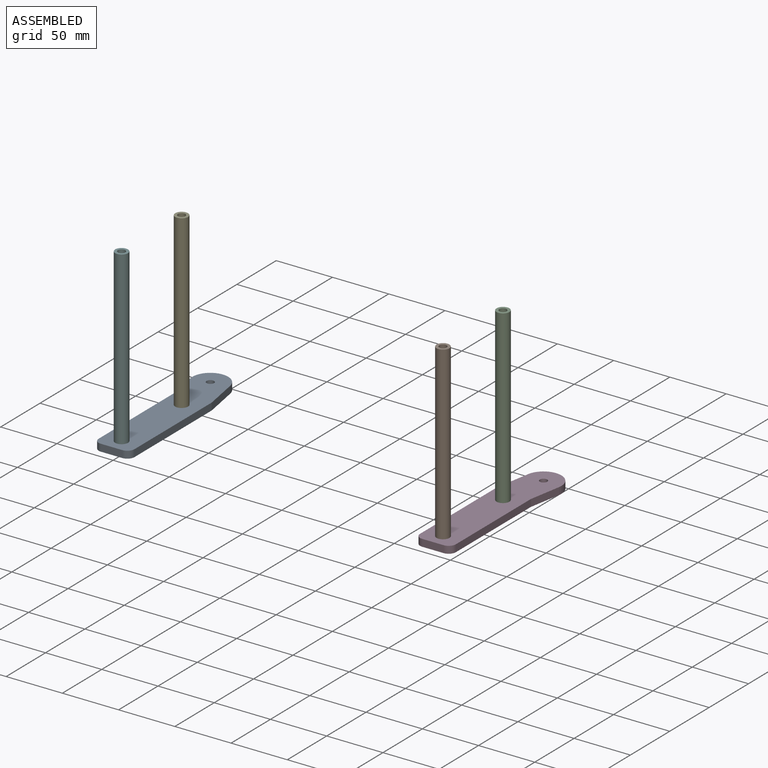
[diagram: assembled view]
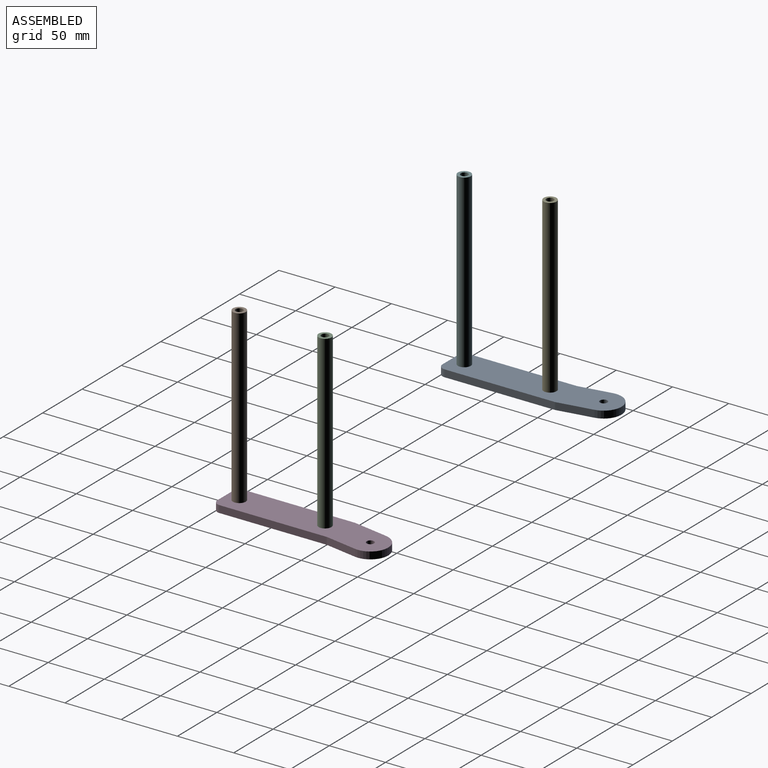
[diagram: assembled view, second angle]
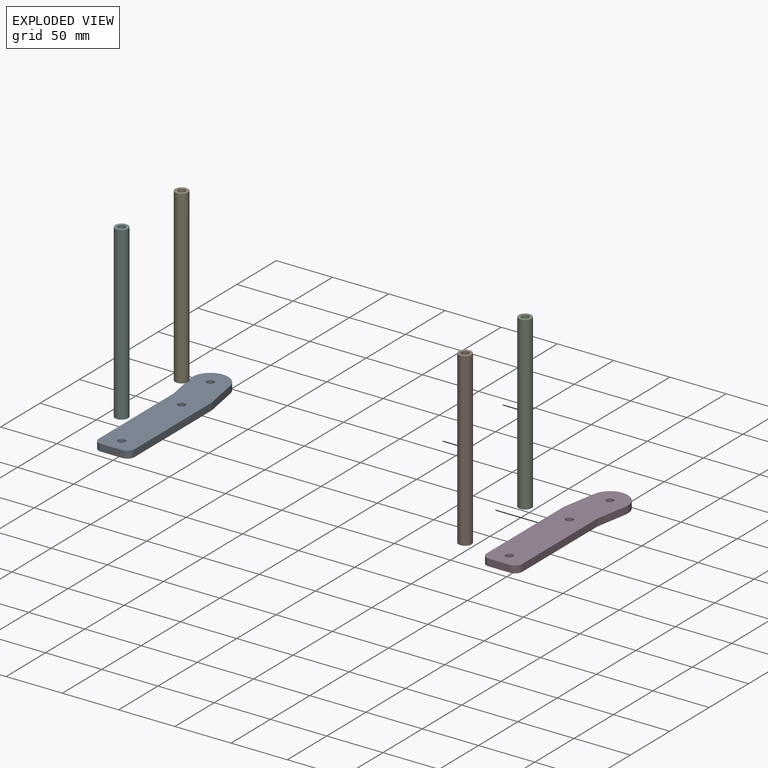
[diagram: exploded view]
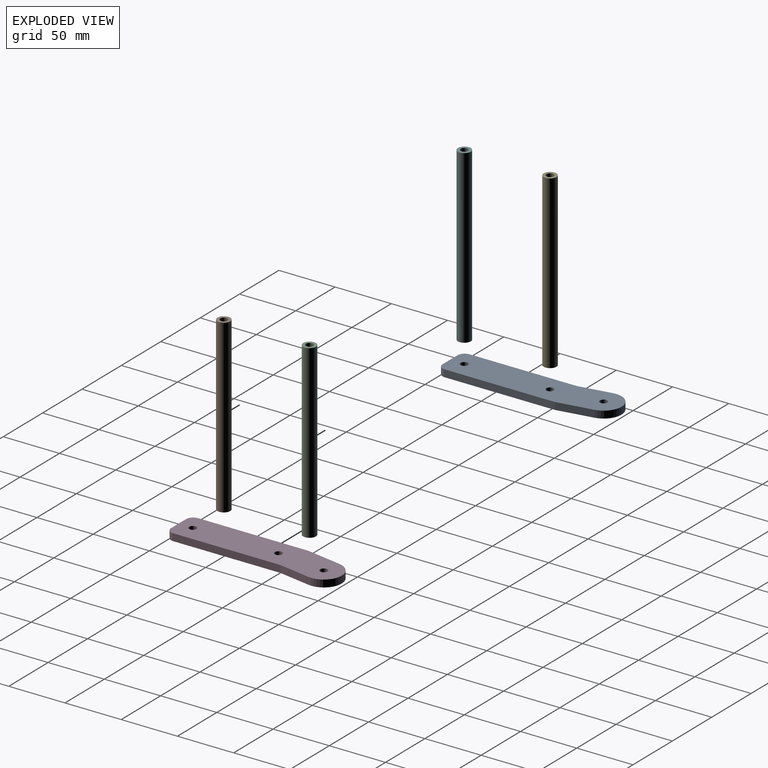
[diagram: exploded view, second angle]
ASSEMBLY  parts=6 mates=4
PART A: 15 faces, bbox 37x148.8x6.4 mm
  f0: cylinder r=15.88mm len=31.51mm, axis (0,0,-1), area 316.7mm2, adj f1,f12,f13,f14
  f1: plane 28.01x6.35mm, normal (-0.98,-0.17,0), area 180.6mm2, adj f0,f2,f13,f14
  f2: cylinder r=6.35mm len=6.35mm, axis (0,0,-1), area 7mm2, adj f1,f3,f13,f14
  f3: plane 94.69x6.35mm, normal (-1,0,0), area 601.3mm2, adj f2,f4,f13,f14
  f4: cylinder r=6.35mm len=6.35mm, axis (0,0,-1), area 63.3mm2, adj f3,f5,f13,f14
  f5: plane 19.05x6.35mm, normal (0,-1,0), area 121mm2, adj f4,f6,f13,f14
  f6: cylinder r=6.35mm len=6.35mm, axis (0,0,-1), area 63.3mm2, adj f5,f7,f13,f14
  f7: plane 97.47x6.35mm, normal (1,0,0), area 618.9mm2, adj f6,f8,f13,f14
  f8: cylinder r=6.35mm len=6.35mm, axis (0,0,-1), area 7mm2, adj f7,f12,f13,f14
  f9: cylinder r=3.3mm len=6.6mm, axis (0,0,-1), area 131.7mm2, adj f13,f14
  f10: cylinder r=3.3mm len=6.6mm, axis (0,0,-1), area 131.7mm2, adj f13,f14
  f11: cylinder r=3.3mm len=6.6mm, axis (0,0,-1), area 131.7mm2, adj f13,f14
  f12: plane 30.74x6.35mm, normal (0.98,0.17,0), area 198.2mm2, adj f0,f8,f13,f14
  f13: plane 148.78x37.03mm, normal (0,0,1), area 4510.3mm2, adj f0,f1,f2,f3,f4,f5,f6,f7
  f14: plane 148.78x37.03mm, normal (0,0,-1), area 4510.3mm2, adj f0,f1,f2,f3,f4,f5,f6,f7
PART B: 4 faces, bbox 11.4x11.4x152.4 mm
  f0: cylinder r=5.71mm len=152.4mm, axis (0,0,-1), area 5472.4mm2, adj f2,f3
  f1: cylinder r=3.3mm len=152.4mm, axis (0,0,-1), area 3161.9mm2, adj f2,f3
  f2: plane 11.43x11.43mm, normal (0,0,1), area 68.4mm2, adj f0,f1
  f3: plane 11.43x11.43mm, normal (0,0,-1), area 68.4mm2, adj f0,f1
PART C: 4 faces, bbox 11.4x11.4x152.4 mm
  f0: cylinder r=5.71mm len=152.4mm, axis (0,0,-1), area 5472.4mm2, adj f2,f3
  f1: cylinder r=3.3mm len=152.4mm, axis (0,0,-1), area 3161.9mm2, adj f2,f3
  f2: plane 11.43x11.43mm, normal (0,0,1), area 68.4mm2, adj f0,f1
  f3: plane 11.43x11.43mm, normal (0,0,-1), area 68.4mm2, adj f0,f1
PART D: 15 faces, bbox 37x148.8x6.4 mm
  f0: cylinder r=15.88mm len=31.51mm, axis (0,0,-1), area 316.7mm2, adj f1,f12,f13,f14
  f1: plane 30.74x6.35mm, normal (-0.98,0.17,0), area 198.2mm2, adj f0,f2,f13,f14
  f2: cylinder r=6.35mm len=6.35mm, axis (0,0,-1), area 7mm2, adj f1,f3,f13,f14
  f3: plane 97.47x6.35mm, normal (-1,0,0), area 618.9mm2, adj f2,f4,f13,f14
  f4: cylinder r=6.35mm len=6.35mm, axis (0,0,-1), area 63.3mm2, adj f3,f5,f13,f14
  f5: plane 19.05x6.35mm, normal (0,-1,0), area 121mm2, adj f4,f6,f13,f14
  f6: cylinder r=6.35mm len=6.35mm, axis (0,0,-1), area 63.3mm2, adj f5,f7,f13,f14
  f7: plane 94.69x6.35mm, normal (1,0,0), area 601.3mm2, adj f6,f8,f13,f14
  f8: cylinder r=6.35mm len=6.35mm, axis (0,0,-1), area 7mm2, adj f7,f12,f13,f14
  f9: cylinder r=3.3mm len=6.6mm, axis (0,0,-1), area 131.7mm2, adj f13,f14
  f10: cylinder r=3.3mm len=6.6mm, axis (0,0,-1), area 131.7mm2, adj f13,f14
  f11: cylinder r=3.3mm len=6.6mm, axis (0,0,-1), area 131.7mm2, adj f13,f14
  f12: plane 28.01x6.35mm, normal (0.98,-0.17,0), area 180.6mm2, adj f0,f8,f13,f14
  f13: plane 148.78x37.03mm, normal (0,0,1), area 4510.3mm2, adj f0,f1,f2,f3,f4,f5,f6,f7
  f14: plane 148.78x37.03mm, normal (0,0,-1), area 4510.3mm2, adj f0,f1,f2,f3,f4,f5,f6,f7
PART E: 4 faces, bbox 11.4x11.4x152.4 mm
  f0: cylinder r=3.3mm len=152.4mm, axis (0,0,-1), area 3161.9mm2, adj f2,f3
  f1: cylinder r=5.71mm len=152.4mm, axis (0,0,-1), area 5472.4mm2, adj f2,f3
  f2: plane 11.43x11.43mm, normal (0,0,1), area 68.4mm2, adj f0,f1
  f3: plane 11.43x11.43mm, normal (0,0,-1), area 68.4mm2, adj f0,f1
PART F: 4 faces, bbox 11.4x11.4x152.4 mm
  f0: cylinder r=3.3mm len=152.4mm, axis (0,0,-1), area 3161.9mm2, adj f2,f3
  f1: cylinder r=5.71mm len=152.4mm, axis (0,0,-1), area 5472.4mm2, adj f2,f3
  f2: plane 11.43x11.43mm, normal (0,0,1), area 68.4mm2, adj f0,f1
  f3: plane 11.43x11.43mm, normal (0,0,-1), area 68.4mm2, adj f0,f1
PLACE A t=(2.01,15.31,-81.98)mm
PLACE B t=(2.01,15.31,-81.98)mm
PLACE C t=(2.01,15.31,-81.98)mm
PLACE D t=(2.01,15.31,-81.98)mm
PLACE E t=(2.01,15.31,-81.98)mm
PLACE F t=(2.01,15.31,-81.98)mm
MATE fastened B.f0 <-> D.f10  axis (0,0,-1) through (144.88,-73.59,-75.63)mm
MATE fastened F.f0 <-> A.f10  axis (0,0,-1) through (-140.87,-73.59,-75.63)mm
MATE fastened C.f0 <-> D.f9  axis (0,0,-1) through (144.88,2.61,-75.63)mm
MATE fastened E.f0 <-> A.f9  axis (0,0,-1) through (-140.87,2.61,-75.63)mm
